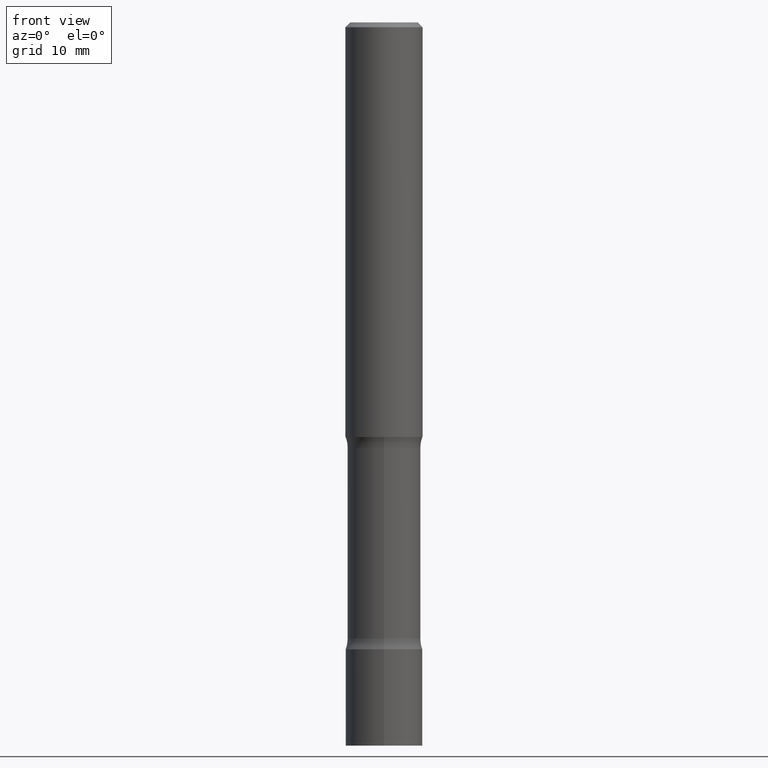
[diagram: clean part render]
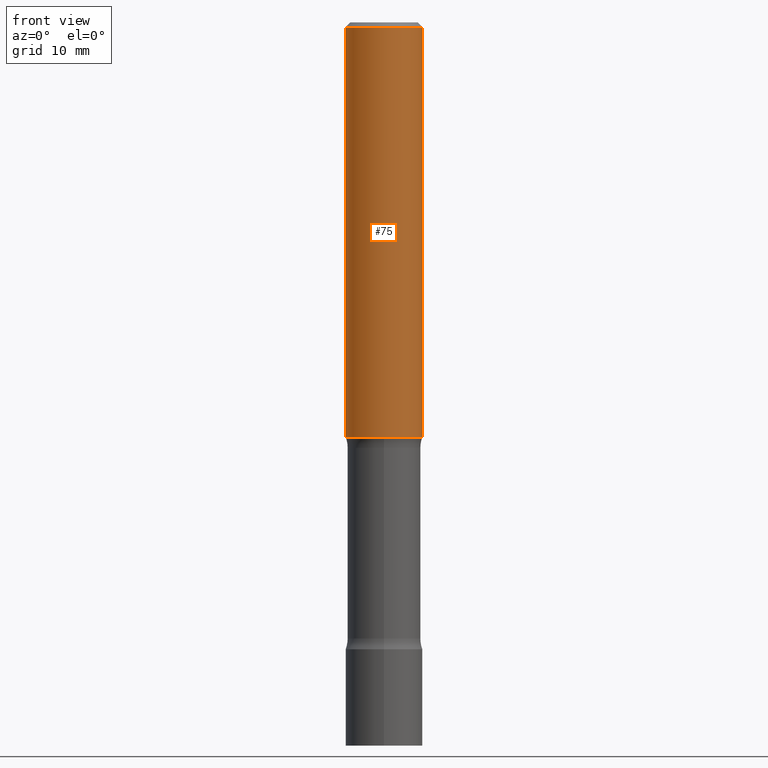
[diagram: same view with one face highlighted and labeled with its STEP entity id]
A machine part, front view. The second image highlights one B-rep face of the part: STEP entity #75.
In plain terms, the highlighted cylindrical surface (partial cylindrical patch) has radius 4.0005 mm, axis along (-0, 0, 1).
Its self-contained STEP definition (entity closure, byte-faithful):
#13 = LINE ( 'NONE', #216, #108 ) ;
#29 = VERTEX_POINT ( 'NONE', #267 ) ;
#31 = CARTESIAN_POINT ( 'NONE',  ( 0.000000000000000000, 0.000000000000000000, 0.000000000000000000 ) ) ;
#55 = AXIS2_PLACEMENT_3D ( 'NONE', #31, #234, #194 ) ;
#75 = ADVANCED_FACE ( 'NONE', ( #495 ), #306, .T. ) ;
#81 = DIRECTION ( 'NONE',  ( -2.445468806185136597E-29, 3.491481338843145583E-15, 1.000000000000000000 ) ) ;
#86 = CARTESIAN_POINT ( 'NONE',  ( -0.1574999999999999456, -1.871348957896993972E-15, -1.692999999999999616 ) ) ;
#87 = CARTESIAN_POINT ( 'NONE',  ( 4.140178688871434900E-29, -5.911077906661444587E-15, -1.692999999999999616 ) ) ;
#108 = VECTOR ( 'NONE', #302, 39.37007874015748143 ) ;
#110 = LINE ( 'NONE', #229, #458 ) ;
#130 = DIRECTION ( 'NONE',  ( -2.445468806185136597E-29, 3.491481338843145583E-15, 1.000000000000000000 ) ) ;
#131 = ORIENTED_EDGE ( 'NONE', *, *, #504, .T. ) ;
#135 = VERTEX_POINT ( 'NONE', #316 ) ;
#146 = AXIS2_PLACEMENT_3D ( 'NONE', #472, #130, #175 ) ;
#170 = CIRCLE ( 'NONE', #146, 0.1574999999999997236 ) ;
#175 = DIRECTION ( 'NONE',  ( 1.000000000000000000, -6.982962677686266711E-15, 0.000000000000000000 ) ) ;
#179 = ORIENTED_EDGE ( 'NONE', *, *, #231, .T. ) ;
#192 = AXIS2_PLACEMENT_3D ( 'NONE', #87, #81, #330 ) ;
#194 = DIRECTION ( 'NONE',  ( 1.000000000000000000, -6.982962677686265922E-15, 4.876176775795935793E-29 ) ) ;
#211 = ORIENTED_EDGE ( 'NONE', *, *, #226, .F. ) ;
#216 = CARTESIAN_POINT ( 'NONE',  ( 0.1574999999999998346, -1.099816621735585705E-15, 7.679978421878591026E-30 ) ) ;
#226 = EDGE_CURVE ( 'NONE', #29, #334, #170, .T. ) ;
#229 = CARTESIAN_POINT ( 'NONE',  ( -0.1574999999999998346, 1.119104808822156617E-15, -7.747322767151467176E-30 ) ) ;
#231 = EDGE_CURVE ( 'NONE', #457, #135, #383, .T. ) ;
#234 = DIRECTION ( 'NONE',  ( -2.445468806185136597E-29, 3.491481338843145583E-15, 1.000000000000000000 ) ) ;
#237 = EDGE_LOOP ( 'NONE', ( #244, #179, #131, #211 ) ) ;
#244 = ORIENTED_EDGE ( 'NONE', *, *, #274, .F. ) ;
#266 = DIRECTION ( 'NONE',  ( -2.445468806185136877E-29, 3.491481338843145188E-15, 1.000000000000000000 ) ) ;
#267 = CARTESIAN_POINT ( 'NONE',  ( -0.1574999999999997236, 1.029986994958722013E-15, -0.02000000000000003511 ) ) ;
#274 = EDGE_CURVE ( 'NONE', #457, #29, #110, .T. ) ;
#302 = DIRECTION ( 'NONE',  ( -2.445468806185136877E-29, 3.491481338843145188E-15, 1.000000000000000000 ) ) ;
#306 = CYLINDRICAL_SURFACE ( 'NONE', #55, 0.1574999999999998346 ) ;
#316 = CARTESIAN_POINT ( 'NONE',  ( 0.1574999999999999456, -7.010894528397031278E-15, -1.692999999999999616 ) ) ;
#326 = CARTESIAN_POINT ( 'NONE',  ( 0.1574999999999997236, -1.150358061425877303E-15, -0.02000000000000003511 ) ) ;
#330 = DIRECTION ( 'NONE',  ( 1.000000000000000000, -6.982962677686270655E-15, 0.000000000000000000 ) ) ;
#334 = VERTEX_POINT ( 'NONE', #326 ) ;
#383 = CIRCLE ( 'NONE', #192, 0.1574999999999999456 ) ;
#457 = VERTEX_POINT ( 'NONE', #86 ) ;
#458 = VECTOR ( 'NONE', #266, 39.37007874015748143 ) ;
#472 = CARTESIAN_POINT ( 'NONE',  ( 4.890937612370281041E-31, -6.982962677686302702E-17, -0.02000000000000003511 ) ) ;
#495 = FACE_OUTER_BOUND ( 'NONE', #237, .T. ) ;
#504 = EDGE_CURVE ( 'NONE', #135, #334, #13, .T. ) ;